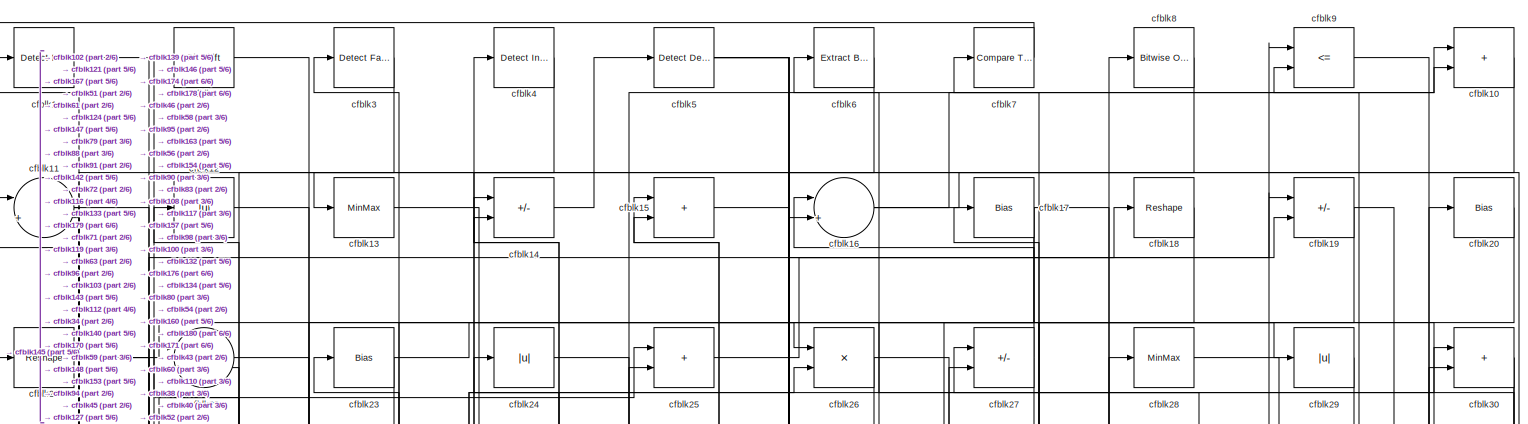
[diagram: root canvas - part 1/6, full width, top band]
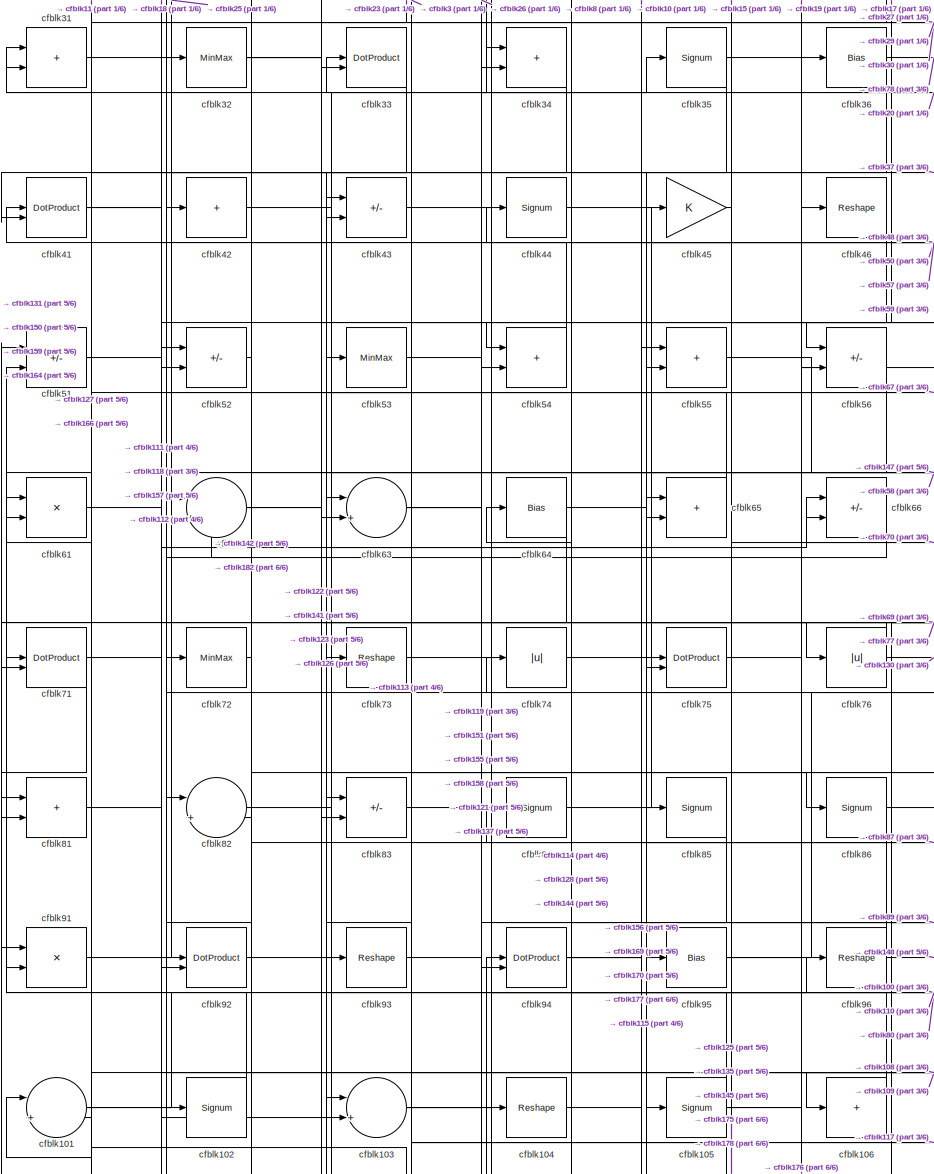
[diagram: root canvas - part 2/6, middle left region]
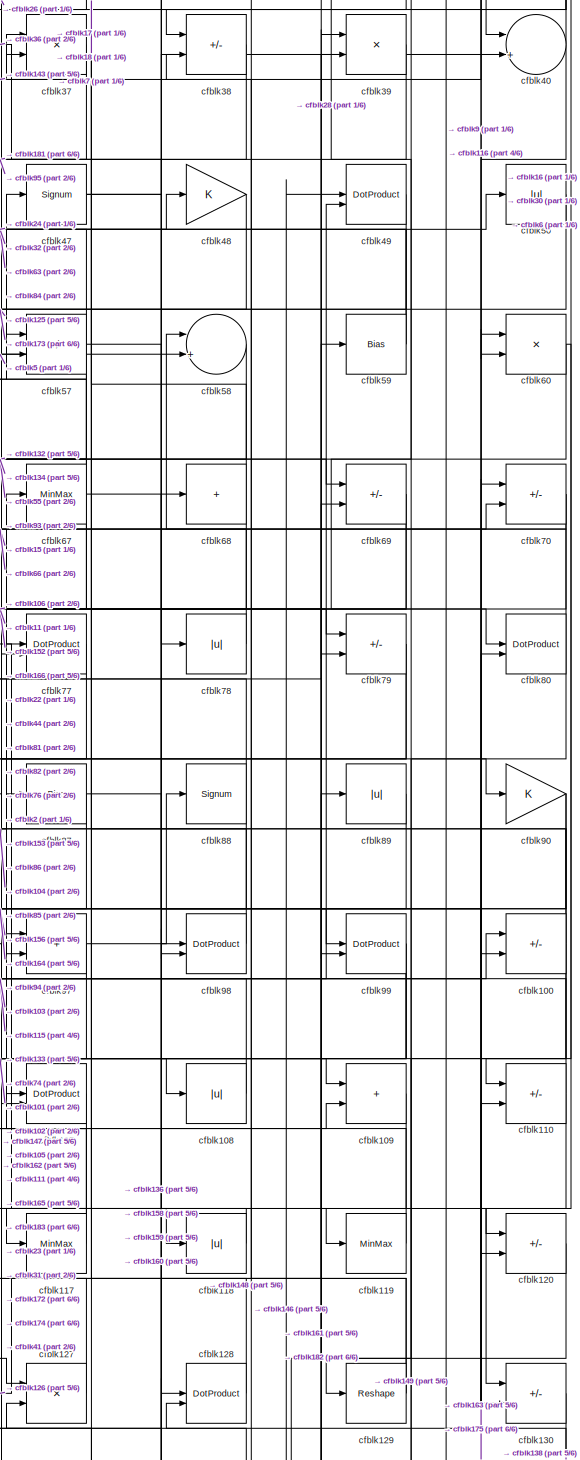
[diagram: root canvas - part 3/6, middle right region]
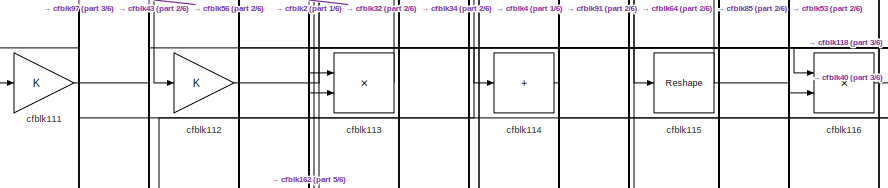
[diagram: root canvas - part 4/6, middle left region]
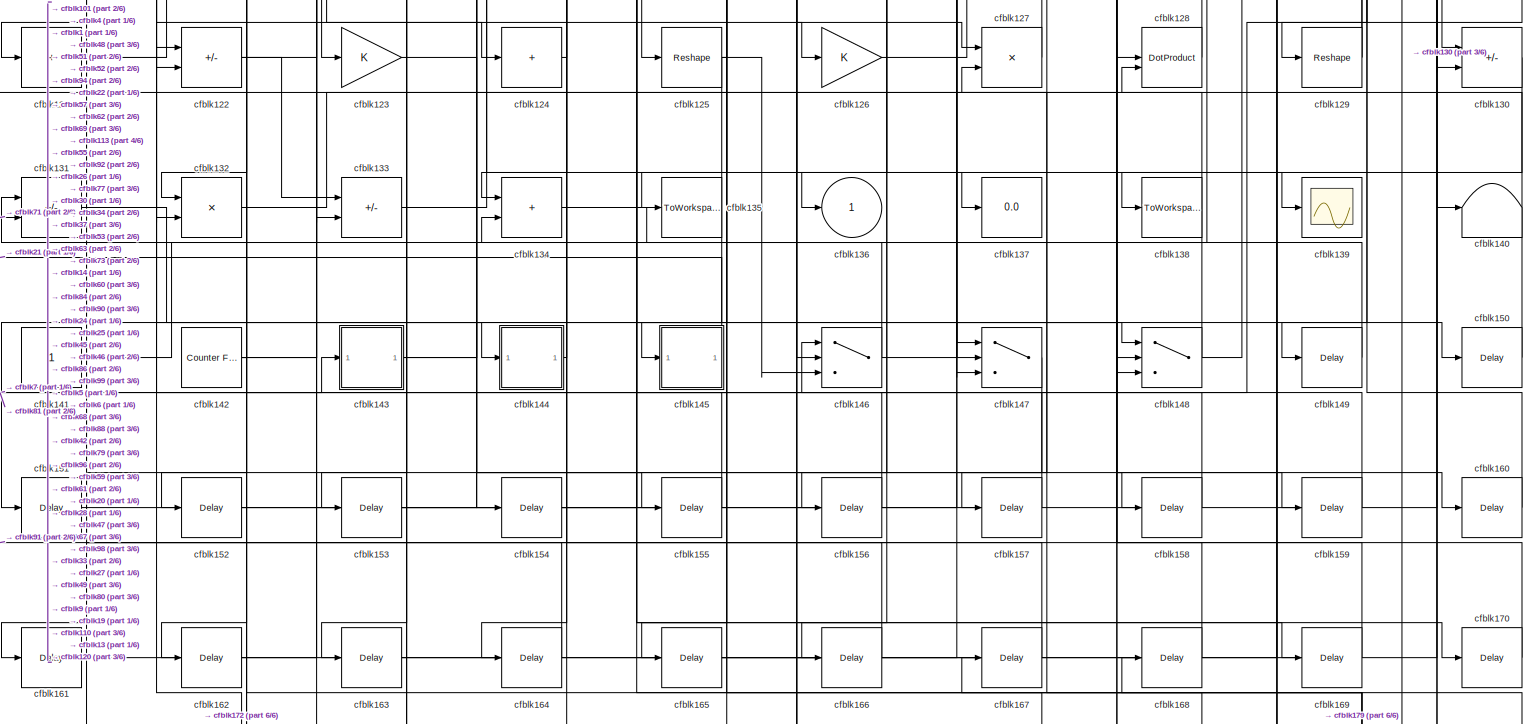
[diagram: root canvas - part 5/6, full width, bottom band]
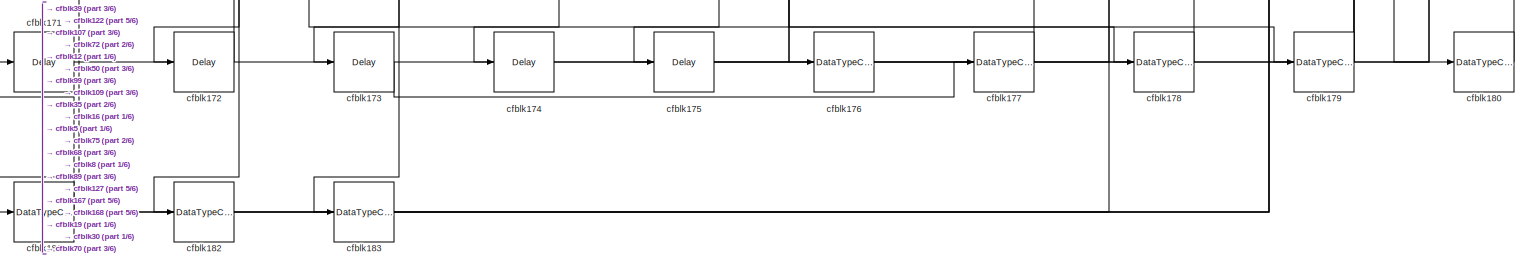
[diagram: root canvas - part 6/6, full width, bottom band]
MODEL slx_14cc5fba9bb1
KIND model
CONFIG AbsTol = auto
CONFIG EnableMultiTasking = off
CONFIG FixedStep = auto
CONFIG MaxStep = auto
CONFIG MinStep = auto
CONFIG RelTol = 1e-3
CONFIG SampleTimeConstraint = Unconstrained
CONFIG SolverName = VariableStepAuto
CONFIG StartTime = 0.0
CONFIG StopTime = 10.0
BLOCK [Reference] cfblk1  REF=simulink/Logic and Bit
Operations/Detect
Increase
  LibrarySourceBlock = hdlsllib/Logic and Bit\nOperations/Detect\nIncrease
  SourceBlock = simulink/Logic and Bit\nOperations/Detect\nIncrease
  SourceType = Detect Increase
BLOCK [Sum] cfblk10
  IconShape = rectangular
BLOCK [Sum] cfblk100
  IconShape = rectangular
  Inputs = +-
BLOCK [Sum] cfblk101
  Inputs = |++
BLOCK [Signum] cfblk102
BLOCK [Sum] cfblk103
  Inputs = |++
BLOCK [Reshape] cfblk104
BLOCK [Signum] cfblk105
BLOCK [Sum] cfblk106
  IconShape = rectangular
  Inputs = +
BLOCK [DotProduct] cfblk107
  OutDataTypeStr = Inherit: Inherit via internal rule
BLOCK [Abs] cfblk108
  SaturateOnIntegerOverflow = off
BLOCK [Sum] cfblk109
  IconShape = rectangular
BLOCK [Sum] cfblk11
  Inputs = |++
BLOCK [Sum] cfblk110
  IconShape = rectangular
  Inputs = +-
BLOCK [Gain] cfblk111
BLOCK [Gain] cfblk112
BLOCK [Product] cfblk113
  Inputs = */
  RndMeth = Zero
  SaturateOnIntegerOverflow = on
BLOCK [Sum] cfblk114
  IconShape = rectangular
  Inputs = +
BLOCK [Reshape] cfblk115
BLOCK [Product] cfblk116
  Inputs = */
  RndMeth = Zero
  SaturateOnIntegerOverflow = on
BLOCK [MinMax] cfblk117
BLOCK [Abs] cfblk118
  SaturateOnIntegerOverflow = off
BLOCK [MinMax] cfblk119
BLOCK [Abs] cfblk12
  SaturateOnIntegerOverflow = off
BLOCK [Sum] cfblk120
  IconShape = rectangular
  Inputs = +-
BLOCK [Sum] cfblk121
  IconShape = rectangular
  Inputs = +
BLOCK [Sum] cfblk122
  IconShape = rectangular
  Inputs = +-
BLOCK [Gain] cfblk123
BLOCK [Sum] cfblk124
  IconShape = rectangular
  Inputs = +
BLOCK [Reshape] cfblk125
BLOCK [Gain] cfblk126
BLOCK [Product] cfblk127
  Inputs = */
  RndMeth = Zero
  SaturateOnIntegerOverflow = on
BLOCK [DotProduct] cfblk128
  OutDataTypeStr = Inherit: Inherit via internal rule
BLOCK [Reshape] cfblk129
BLOCK [MinMax] cfblk13
BLOCK [Sum] cfblk130
  IconShape = rectangular
  Inputs = +-
BLOCK [Sum] cfblk131
  IconShape = rectangular
  Inputs = +-
BLOCK [Product] cfblk132
  Inputs = */
  RndMeth = Zero
  SaturateOnIntegerOverflow = on
BLOCK [Sum] cfblk133
  IconShape = rectangular
  Inputs = +-
BLOCK [Sum] cfblk134
  IconShape = rectangular
BLOCK [ToWorkspace] cfblk135
  MaxDataPoints = inf
  SampleTime = -1
  SaveFormat = Timeseries
  VariableName = simout
BLOCK [Outport] cfblk136
  VectorParamsAs1DForOutWhenUnconnected = off
BLOCK [Display] cfblk137
  Decimation = 1
BLOCK [ToWorkspace] cfblk138
  MaxDataPoints = inf
  SampleTime = -1
  SaveFormat = Timeseries
  VariableName = simout
BLOCK [Scope] cfblk139
  Floating = off
  NumInputPorts = 1
  ScopeSpecificationString = Simulink.scopes.TimeScopeBlockCfg('CurrentConfiguration', extmgr.ConfigurationSet(extmgr.Configuration('Core','General UI',true),extmgr.Configuration('Core','Source UI',true),extmgr.Configuration('Sources','WiredSimulink',true,'DataLoggingVariableName','ScopeData2','DataLoggingSaveFormat','Array','DataLoggingLimitDataPoints',true,'DataLoggingDecimation','1'),extmgr.Configuration('Visuals','Time Do...<+868ch>
BLOCK [Sum] cfblk14
  IconShape = rectangular
  Inputs = +-
BLOCK [Terminator] cfblk140
BLOCK [Constant] cfblk141
  SampleTime = -1
BLOCK [Reference] cfblk142  REF=hdlsllib/Sources/Counter
Free-Running
  SourceBlock = hdlsllib/Sources/Counter\nFree-Running
  SourceType = Counter Free-Running
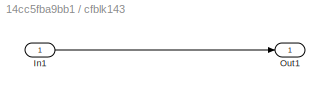
BLOCK [SubSystem] cfblk143
  LibrarySourceBlock = hdlsllib/Ports &\nSubsystems/Subsystem
BLOCK [Inport] cfblk143/In1
BLOCK [Outport] cfblk143/Out1
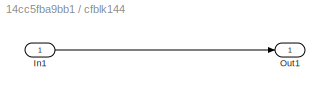
BLOCK [SubSystem] cfblk144
  LibrarySourceBlock = hdlsllib/Ports &\nSubsystems/Subsystem
BLOCK [Inport] cfblk144/In1
BLOCK [Outport] cfblk144/Out1
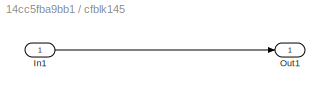
BLOCK [SubSystem] cfblk145
  LibrarySourceBlock = hdlsllib/Ports &\nSubsystems/Subsystem
BLOCK [Inport] cfblk145/In1
BLOCK [Outport] cfblk145/Out1
BLOCK [Switch] cfblk146
  InputSameDT = off
  SaturateOnIntegerOverflow = off
BLOCK [Switch] cfblk147
  InputSameDT = off
  SaturateOnIntegerOverflow = off
BLOCK [Switch] cfblk148
  InputSameDT = off
  SaturateOnIntegerOverflow = off
BLOCK [Delay] cfblk149
  InputPortMap = u0
  SampleTime = 1
BLOCK [Sum] cfblk15
  IconShape = rectangular
BLOCK [Delay] cfblk150
  InputPortMap = u0
  SampleTime = 1
BLOCK [Delay] cfblk151
  InputPortMap = u0
  SampleTime = 1
BLOCK [Delay] cfblk152
  InputPortMap = u0
  SampleTime = 1
BLOCK [Delay] cfblk153
  InputPortMap = u0
  SampleTime = 1
BLOCK [Delay] cfblk154
  InputPortMap = u0
  SampleTime = 1
BLOCK [Delay] cfblk155
  InputPortMap = u0
  SampleTime = 1
BLOCK [Delay] cfblk156
  InputPortMap = u0
  SampleTime = 1
BLOCK [Delay] cfblk157
  InputPortMap = u0
  SampleTime = 1
BLOCK [Delay] cfblk158
  InputPortMap = u0
  SampleTime = 1
BLOCK [Delay] cfblk159
  InputPortMap = u0
  SampleTime = 1
BLOCK [Sum] cfblk16
  Inputs = |++
BLOCK [Delay] cfblk160
  InputPortMap = u0
  SampleTime = 1
BLOCK [Delay] cfblk161
  InputPortMap = u0
  SampleTime = 1
BLOCK [Delay] cfblk162
  InputPortMap = u0
  SampleTime = 1
BLOCK [Delay] cfblk163
  InputPortMap = u0
  SampleTime = 1
BLOCK [Delay] cfblk164
  InputPortMap = u0
  SampleTime = 1
BLOCK [Delay] cfblk165
  InputPortMap = u0
  SampleTime = 1
BLOCK [Delay] cfblk166
  InputPortMap = u0
  SampleTime = 1
BLOCK [Delay] cfblk167
  InputPortMap = u0
  SampleTime = 1
BLOCK [Delay] cfblk168
  InputPortMap = u0
  SampleTime = 1
BLOCK [Delay] cfblk169
  InputPortMap = u0
  SampleTime = 1
BLOCK [Bias] cfblk17
  Bias = 0.0
  SaturateOnIntegerOverflow = off
BLOCK [Delay] cfblk170
  InputPortMap = u0
  SampleTime = 1
BLOCK [Delay] cfblk171
  InputPortMap = u0
  SampleTime = 1
BLOCK [Delay] cfblk172
  InputPortMap = u0
  SampleTime = 1
BLOCK [Delay] cfblk173
  InputPortMap = u0
  SampleTime = 1
BLOCK [Delay] cfblk174
  InputPortMap = u0
  SampleTime = 1
BLOCK [Delay] cfblk175
  InputPortMap = u0
  SampleTime = 1
BLOCK [DataTypeConversion] cfblk176
  OutDataTypeStr = uint8
  RndMeth = Floor
  SaturateOnIntegerOverflow = off
BLOCK [DataTypeConversion] cfblk177
  OutDataTypeStr = uint8
  RndMeth = Floor
  SaturateOnIntegerOverflow = off
BLOCK [DataTypeConversion] cfblk178
  OutDataTypeStr = uint8
  RndMeth = Floor
  SaturateOnIntegerOverflow = off
BLOCK [DataTypeConversion] cfblk179
  RndMeth = Floor
  SaturateOnIntegerOverflow = off
BLOCK [Reshape] cfblk18
BLOCK [DataTypeConversion] cfblk180
  OutDataTypeStr = uint8
  RndMeth = Floor
  SaturateOnIntegerOverflow = off
BLOCK [DataTypeConversion] cfblk181
  RndMeth = Floor
  SaturateOnIntegerOverflow = off
BLOCK [DataTypeConversion] cfblk182
  OutDataTypeStr = uint8
  RndMeth = Floor
  SaturateOnIntegerOverflow = off
BLOCK [DataTypeConversion] cfblk183
  OutDataTypeStr = uint8
  RndMeth = Floor
  SaturateOnIntegerOverflow = off
BLOCK [Sum] cfblk19
  IconShape = rectangular
  Inputs = +-
BLOCK [Reference] cfblk2  REF=hdlsllib/Logic and Bit
Operations/Bit Shift
  SourceBlock = hdlsllib/Logic and Bit\nOperations/Bit Shift
  SourceType = Bit Shift
BLOCK [Bias] cfblk20
  Bias = 0.0
  SaturateOnIntegerOverflow = off
BLOCK [Reshape] cfblk21
BLOCK [Sum] cfblk22
  Inputs = |++
BLOCK [Bias] cfblk23
  Bias = 0.0
  SaturateOnIntegerOverflow = off
BLOCK [Abs] cfblk24
  SaturateOnIntegerOverflow = off
BLOCK [Sum] cfblk25
  IconShape = rectangular
BLOCK [Product] cfblk26
  Inputs = */
  RndMeth = Zero
  SaturateOnIntegerOverflow = on
BLOCK [Sum] cfblk27
  IconShape = rectangular
  Inputs = +-
BLOCK [MinMax] cfblk28
BLOCK [Abs] cfblk29
  SaturateOnIntegerOverflow = off
BLOCK [Reference] cfblk3  REF=hdlsllib/Logic and Bit
Operations/Detect Fall
Nonpositive
  SourceBlock = hdlsllib/Logic and Bit\nOperations/Detect Fall\nNonpositive
  SourceType = Detect Fall Nonpositive
BLOCK [Sum] cfblk30
  IconShape = rectangular
BLOCK [Sum] cfblk31
  IconShape = rectangular
BLOCK [MinMax] cfblk32
BLOCK [DotProduct] cfblk33
  OutDataTypeStr = Inherit: Inherit via internal rule
BLOCK [Sum] cfblk34
  IconShape = rectangular
BLOCK [Signum] cfblk35
BLOCK [Bias] cfblk36
  Bias = 0.0
  SaturateOnIntegerOverflow = off
BLOCK [Product] cfblk37
  Inputs = */
  RndMeth = Zero
  SaturateOnIntegerOverflow = on
BLOCK [Sum] cfblk38
  IconShape = rectangular
  Inputs = +-
BLOCK [Product] cfblk39
  Inputs = */
  RndMeth = Zero
  SaturateOnIntegerOverflow = on
BLOCK [Reference] cfblk4  REF=simulink/Logic and Bit
Operations/Detect
Increase
  LibrarySourceBlock = hdlsllib/Logic and Bit\nOperations/Detect\nIncrease
  SourceBlock = simulink/Logic and Bit\nOperations/Detect\nIncrease
  SourceType = Detect Increase
BLOCK [Sum] cfblk40
  Inputs = |++
BLOCK [DotProduct] cfblk41
  OutDataTypeStr = Inherit: Inherit via internal rule
BLOCK [Sum] cfblk42
  IconShape = rectangular
  Inputs = +
BLOCK [Sum] cfblk43
  IconShape = rectangular
  Inputs = +-
BLOCK [Signum] cfblk44
BLOCK [Gain] cfblk45
BLOCK [Reshape] cfblk46
BLOCK [Signum] cfblk47
BLOCK [Gain] cfblk48
BLOCK [DotProduct] cfblk49
  OutDataTypeStr = Inherit: Inherit via internal rule
BLOCK [Reference] cfblk5  REF=simulink/Logic and Bit
Operations/Detect
Decrease
  LibrarySourceBlock = hdlsllib/Logic and Bit\nOperations/Detect\nDecrease
  SourceBlock = simulink/Logic and Bit\nOperations/Detect\nDecrease
  SourceType = Detect Decrease
BLOCK [Abs] cfblk50
  SaturateOnIntegerOverflow = off
BLOCK [Sum] cfblk51
  IconShape = rectangular
  Inputs = +-
BLOCK [Sum] cfblk52
  IconShape = rectangular
  Inputs = +-
BLOCK [MinMax] cfblk53
BLOCK [Sum] cfblk54
  IconShape = rectangular
BLOCK [Sum] cfblk55
  IconShape = rectangular
BLOCK [Sum] cfblk56
  IconShape = rectangular
  Inputs = +-
BLOCK [Sum] cfblk57
  IconShape = rectangular
  Inputs = +-
BLOCK [Sum] cfblk58
  Inputs = |++
BLOCK [Bias] cfblk59
  Bias = 0.0
  SaturateOnIntegerOverflow = off
BLOCK [Reference] cfblk6  REF=simulink/Logic and Bit
Operations/Extract Bits
  LibrarySourceBlock = hdlsllib/Logic and Bit\nOperations/Extract Bits
  SourceBlock = simulink/Logic and Bit\nOperations/Extract Bits
  SourceType = Extract Bits
BLOCK [Product] cfblk60
  Inputs = */
  RndMeth = Zero
  SaturateOnIntegerOverflow = on
BLOCK [Product] cfblk61
  Inputs = */
  RndMeth = Zero
  SaturateOnIntegerOverflow = on
BLOCK [Sum] cfblk62
  Inputs = |++
BLOCK [Sum] cfblk63
  Inputs = |++
BLOCK [Bias] cfblk64
  Bias = 0.0
  SaturateOnIntegerOverflow = off
BLOCK [Sum] cfblk65
  IconShape = rectangular
BLOCK [Sum] cfblk66
  IconShape = rectangular
  Inputs = +-
BLOCK [MinMax] cfblk67
BLOCK [Sum] cfblk68
  IconShape = rectangular
  Inputs = +
BLOCK [Sum] cfblk69
  IconShape = rectangular
  Inputs = +-
BLOCK [Reference] cfblk7  REF=hdlsllib/Logic and Bit
Operations/Compare
To Zero
  SourceBlock = hdlsllib/Logic and Bit\nOperations/Compare\nTo Zero
  SourceType = Compare To Zero
BLOCK [Sum] cfblk70
  IconShape = rectangular
  Inputs = +-
BLOCK [DotProduct] cfblk71
  OutDataTypeStr = Inherit: Inherit via internal rule
BLOCK [MinMax] cfblk72
BLOCK [Reshape] cfblk73
BLOCK [Abs] cfblk74
  SaturateOnIntegerOverflow = off
BLOCK [DotProduct] cfblk75
  OutDataTypeStr = Inherit: Inherit via internal rule
BLOCK [Abs] cfblk76
  SaturateOnIntegerOverflow = off
BLOCK [DotProduct] cfblk77
  OutDataTypeStr = Inherit: Inherit via internal rule
BLOCK [Abs] cfblk78
  SaturateOnIntegerOverflow = off
BLOCK [Sum] cfblk79
  IconShape = rectangular
  Inputs = +-
BLOCK [Reference] cfblk8  REF=simulink/Logic and Bit
Operations/Bitwise
Operator
  LibrarySourceBlock = hdlsllib/Logic and Bit\nOperations/Bitwise\nOperator
  SourceBlock = simulink/Logic and Bit\nOperations/Bitwise\nOperator
  SourceType = Bitwise Operator
BLOCK [DotProduct] cfblk80
  OutDataTypeStr = Inherit: Inherit via internal rule
BLOCK [Sum] cfblk81
  IconShape = rectangular
BLOCK [Sum] cfblk82
  Inputs = |++
BLOCK [Sum] cfblk83
  IconShape = rectangular
  Inputs = +-
BLOCK [Signum] cfblk84
BLOCK [Signum] cfblk85
BLOCK [Signum] cfblk86
BLOCK [Bias] cfblk87
  Bias = 0.0
  SaturateOnIntegerOverflow = off
BLOCK [Signum] cfblk88
BLOCK [Abs] cfblk89
  SaturateOnIntegerOverflow = off
BLOCK [RelationalOperator] cfblk9
  InputSameDT = off
  Operator = <=
  OutDataTypeStr = boolean
BLOCK [Gain] cfblk90
BLOCK [Product] cfblk91
  Inputs = */
  RndMeth = Zero
  SaturateOnIntegerOverflow = on
BLOCK [DotProduct] cfblk92
  OutDataTypeStr = Inherit: Inherit via internal rule
BLOCK [Reshape] cfblk93
BLOCK [DotProduct] cfblk94
  OutDataTypeStr = Inherit: Inherit via internal rule
BLOCK [Bias] cfblk95
  Bias = 0.0
  SaturateOnIntegerOverflow = off
BLOCK [Reshape] cfblk96
BLOCK [Sum] cfblk97
  IconShape = rectangular
BLOCK [DotProduct] cfblk98
  OutDataTypeStr = Inherit: Inherit via internal rule
BLOCK [DotProduct] cfblk99
  OutDataTypeStr = Inherit: Inherit via internal rule
NET cfblk100:1 -> cfblk102:1, cfblk129:1, cfblk22:1, cfblk85:1
NET cfblk101:1 -> cfblk108:1, cfblk56:2
LINE cfblk102:1 -> cfblk11:1
NET cfblk103:1 -> cfblk100:1, cfblk26:2, cfblk80:2
LINE cfblk104:1 -> cfblk87:1
NET cfblk105:1 -> cfblk109:1, cfblk109:2, cfblk51:2
LINE cfblk106:1 -> cfblk83:1
LINE cfblk107:1 -> cfblk172:1
LINE cfblk108:1 -> cfblk17:1
LINE cfblk109:1 -> cfblk174:1
LINE cfblk10:1 -> cfblk13:1
NET cfblk110:1 -> cfblk130:2, cfblk74:1
LINE cfblk111:1 -> cfblk43:2
LINE cfblk112:1 -> cfblk4:1
LINE cfblk113:1 -> cfblk91:2
LINE cfblk114:1 -> cfblk64:1
NET cfblk115:1 -> cfblk53:1, cfblk97:1
LINE cfblk116:1 -> cfblk40:1
NET cfblk117:1 -> cfblk31:1, cfblk67:1
LINE cfblk118:1 -> cfblk116:1
LINE cfblk119:1 -> cfblk23:1
NET cfblk11:1 -> cfblk61:1, cfblk79:2
LINE cfblk120:1 -> cfblk146:1
LINE cfblk121:1 -> cfblk94:1
NET cfblk122:1 -> cfblk133:1, cfblk55:2
LINE cfblk123:1 -> cfblk154:1
LINE cfblk124:1 -> cfblk14:1
NET cfblk125:1 -> cfblk146:3, cfblk151:1, cfblk45:1
LINE cfblk126:1 -> cfblk59:1
LINE cfblk127:1 -> cfblk61:2
LINE cfblk128:1 -> cfblk33:1
NET cfblk129:1 -> cfblk38:2, cfblk97:2
LINE cfblk12:1 -> cfblk179:1
LINE cfblk130:1 -> cfblk138:1
LINE cfblk131:1 -> cfblk144:1
LINE cfblk132:1 -> cfblk28:1
LINE cfblk133:1 -> cfblk49:2
LINE cfblk134:1 -> cfblk27:1
LINE cfblk13:1 -> cfblk140:1
LINE cfblk141:1 -> cfblk33:2
NET cfblk142:1 -> cfblk22:2, cfblk63:2, cfblk96:1
LINE cfblk143/In1:1 -> cfblk143/Out1:1
NET cfblk143:1 -> cfblk30:1, cfblk37:2
LINE cfblk144/In1:1 -> cfblk144/Out1:1
LINE cfblk144:1 -> cfblk84:1
LINE cfblk145/In1:1 -> cfblk145/Out1:1
LINE cfblk145:1 -> cfblk21:1
NET cfblk146:1 -> cfblk131:1, cfblk150:1
LINE cfblk147:1 -> cfblk161:1
NET cfblk148:1 -> cfblk128:2, cfblk49:1
LINE cfblk149:1 -> cfblk134:2
LINE cfblk14:1 -> cfblk5:1
LINE cfblk150:1 -> cfblk51:1
LINE cfblk151:1 -> cfblk34:2
LINE cfblk152:1 -> cfblk60:1
LINE cfblk153:1 -> cfblk25:2
LINE cfblk154:1 -> cfblk27:2
LINE cfblk155:1 -> cfblk62:1
LINE cfblk156:1 -> cfblk55:1
LINE cfblk157:1 -> cfblk52:1
LINE cfblk158:1 -> cfblk98:1
LINE cfblk159:1 -> cfblk81:1
LINE cfblk15:1 -> cfblk46:1
LINE cfblk160:1 -> cfblk9:2
LINE cfblk161:1 -> cfblk69:2
LINE cfblk162:1 -> cfblk113:1
LINE cfblk163:1 -> cfblk110:2
LINE cfblk164:1 -> cfblk91:1
LINE cfblk165:1 -> cfblk57:2
LINE cfblk166:1 -> cfblk101:1
LINE cfblk167:1 -> cfblk1:1
LINE cfblk168:1 -> cfblk128:1
LINE cfblk169:1 -> cfblk148:2
NET cfblk16:1 -> cfblk10:1, cfblk110:1
LINE cfblk170:1 -> cfblk14:2
LINE cfblk171:1 -> cfblk30:2
LINE cfblk172:1 -> cfblk122:1
LINE cfblk173:1 -> cfblk177:1
LINE cfblk174:1 -> cfblk16:2
LINE cfblk175:1 -> cfblk70:1
LINE cfblk176:1 -> cfblk8:1
LINE cfblk177:1 -> cfblk75:1
LINE cfblk178:1 -> cfblk75:2
NET cfblk179:1 -> cfblk127:2, cfblk167:1, cfblk168:1
NET cfblk17:1 -> cfblk100:2, cfblk56:1, cfblk63:1
LINE cfblk180:1 -> cfblk12:1
NET cfblk181:1 -> cfblk171:1, cfblk68:1, cfblk89:1
LINE cfblk182:1 -> cfblk39:1
LINE cfblk183:1 -> cfblk39:2
LINE cfblk18:1 -> cfblk117:1
NET cfblk19:1 -> cfblk133:2, cfblk180:1
LINE cfblk1:1 -> cfblk124:1
LINE cfblk20:1 -> cfblk157:1
NET cfblk21:1 -> cfblk147:2, cfblk29:1
LINE cfblk22:1 -> cfblk79:1
NET cfblk23:1 -> cfblk26:1, cfblk71:1
LINE cfblk24:1 -> cfblk148:1
LINE cfblk25:1 -> cfblk9:1
NET cfblk26:1 -> cfblk163:1, cfblk90:1
NET cfblk27:1 -> cfblk16:1, cfblk83:2
LINE cfblk28:1 -> cfblk80:1
LINE cfblk29:1 -> cfblk54:1
LINE cfblk2:1 -> cfblk116:2
NET cfblk30:1 -> cfblk38:1, cfblk52:2
LINE cfblk31:1 -> cfblk43:1
NET cfblk32:1 -> cfblk114:1, cfblk54:2, cfblk86:1
NET cfblk33:1 -> cfblk101:2, cfblk123:1
LINE cfblk34:1 -> cfblk113:2
NET cfblk35:1 -> cfblk175:1, cfblk36:1, cfblk41:2
NET cfblk36:1 -> cfblk78:1, cfblk92:2
LINE cfblk37:1 -> cfblk95:1
LINE cfblk38:1 -> cfblk77:2
LINE cfblk39:1 -> cfblk181:1
LINE cfblk3:1 -> cfblk72:1
NET cfblk40:1 -> cfblk120:2, cfblk6:1
NET cfblk41:1 -> cfblk103:2, cfblk118:1
LINE cfblk42:1 -> cfblk147:1
LINE cfblk43:1 -> cfblk20:1
LINE cfblk44:1 -> cfblk77:1
LINE cfblk45:1 -> cfblk15:2
LINE cfblk46:1 -> cfblk135:1
NET cfblk47:1 -> cfblk159:1, cfblk40:2
LINE cfblk48:1 -> cfblk132:2
LINE cfblk49:1 -> cfblk125:1
LINE cfblk4:1 -> cfblk121:1
LINE cfblk50:1 -> cfblk173:1
NET cfblk51:1 -> cfblk11:2, cfblk122:2
LINE cfblk52:1 -> cfblk92:1
LINE cfblk53:1 -> cfblk158:1
LINE cfblk54:1 -> cfblk41:1
LINE cfblk55:1 -> cfblk69:1
LINE cfblk56:1 -> cfblk112:1
NET cfblk57:1 -> cfblk132:1, cfblk32:1, cfblk93:1, cfblk99:1
LINE cfblk58:1 -> cfblk82:1
NET cfblk59:1 -> cfblk24:1, cfblk44:1
NET cfblk5:1 -> cfblk127:1, cfblk139:1, cfblk178:1, cfblk58:2
NET cfblk60:1 -> cfblk120:1, cfblk134:1
LINE cfblk61:1 -> cfblk18:1
NET cfblk62:1 -> cfblk104:1, cfblk76:1
NET cfblk63:1 -> cfblk119:1, cfblk155:1, cfblk50:1
NET cfblk64:1 -> cfblk65:1, cfblk71:2
LINE cfblk65:1 -> cfblk42:1
LINE cfblk66:1 -> cfblk62:2
NET cfblk67:1 -> cfblk136:1, cfblk160:1, cfblk31:2, cfblk47:1, cfblk82:2
NET cfblk68:1 -> cfblk166:1, cfblk37:1
NET cfblk69:1 -> cfblk152:1, cfblk81:2
LINE cfblk6:1 -> cfblk146:2
NET cfblk70:1 -> cfblk106:1, cfblk66:2
NET cfblk71:1 -> cfblk103:1, cfblk131:2
LINE cfblk72:1 -> cfblk182:1
LINE cfblk73:1 -> cfblk137:1
LINE cfblk74:1 -> cfblk57:1
LINE cfblk75:1 -> cfblk176:1
NET cfblk76:1 -> cfblk130:1, cfblk73:1
LINE cfblk77:1 -> cfblk153:1
LINE cfblk78:1 -> cfblk58:1
NET cfblk79:1 -> cfblk147:3, cfblk162:1
LINE cfblk7:1 -> cfblk143:1
NET cfblk80:1 -> cfblk149:1, cfblk15:1
LINE cfblk81:1 -> cfblk66:1
LINE cfblk82:1 -> cfblk65:2
LINE cfblk83:1 -> cfblk35:1
LINE cfblk84:1 -> cfblk48:1
LINE cfblk85:1 -> cfblk115:1
NET cfblk86:1 -> cfblk145:1, cfblk70:2
NET cfblk87:1 -> cfblk107:2, cfblk98:2
NET cfblk88:1 -> cfblk156:1, cfblk2:1
LINE cfblk89:1 -> cfblk94:2
LINE cfblk8:1 -> cfblk34:1
NET cfblk90:1 -> cfblk164:1, cfblk99:2
LINE cfblk91:1 -> cfblk25:1
LINE cfblk92:1 -> cfblk126:1
LINE cfblk93:1 -> cfblk105:1
NET cfblk94:1 -> cfblk10:2, cfblk169:1, cfblk170:1
NET cfblk95:1 -> cfblk19:1, cfblk19:2
NET cfblk96:1 -> cfblk148:3, cfblk3:1
NET cfblk97:1 -> cfblk111:1, cfblk88:1
LINE cfblk98:1 -> cfblk7:1
NET cfblk99:1 -> cfblk107:1, cfblk165:1, cfblk183:1
LINE cfblk9:1 -> cfblk60:2
note: NET lines group one-source signal fan-out (src -> all destinations, sorted); 1:1 wires keep LINE
